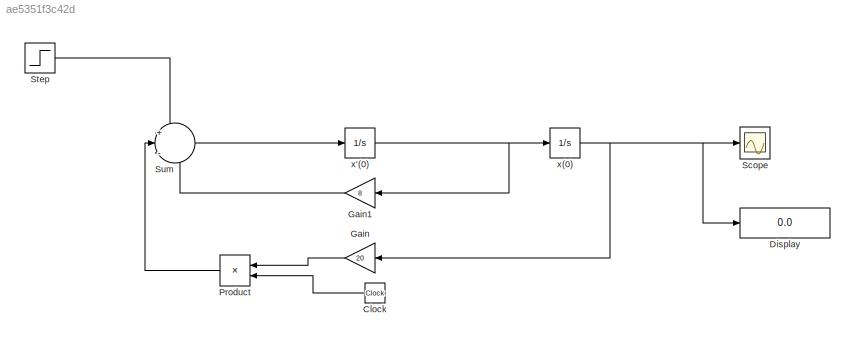
MODEL slx_ae5351f3c42d
KIND model
CONFIG AbsTol = auto
CONFIG EnableMultiTasking = off
CONFIG FixedStep = auto
CONFIG MaxStep = auto
CONFIG MinStep = auto
CONFIG RelTol = 1e-3
CONFIG SampleTimeConstraint = Unconstrained
CONFIG SolverName = VariableStepAuto
CONFIG StartTime = 0.0
CONFIG StopTime = 2
BLOCK [Clock] Clock
BLOCK [Display] Display
  Decimation = 1
BLOCK [Gain] Gain
  Gain = 20
BLOCK [Gain] Gain1
  Gain = 8
BLOCK [Product] Product
BLOCK [Scope] Scope
  Floating = off
  NumInputPorts = 1
  ScopeSpecificationString = Simulink.scopes.TimeScopeBlockCfg('CurrentConfiguration', extmgr.ConfigurationSet(extmgr.Configuration('Core','General UI',true),extmgr.Configuration('Core','Source UI',true),extmgr.Configuration('Sources','WiredSimulink',true),extmgr.Configuration('Visuals','Time Domain',true,'SerializedDisplays',{struct('MinYLimReal','-0.00794','MaxYLimReal','0.07145','YLabelReal','','MinYLimMag','0.00000','MaxY...<+1377ch>
BLOCK [Step] Step
  SampleTime = 0
  Time = 0
BLOCK [Sum] Sum
  Inputs = +|-|-
BLOCK [Integrator] x'(0)
BLOCK [Integrator] x(0)
LINE Clock:1 -> Product:2
LINE Gain1:1 -> Sum:3
LINE Gain:1 -> Product:1
LINE Product:1 -> Sum:2
LINE Step:1 -> Sum:1
LINE Sum:1 -> x'(0):1
NET x'(0):1 -> Gain1:1, x(0):1
NET x(0):1 -> Display:1, Gain:1, Scope:1
note: NET lines group one-source signal fan-out (src -> all destinations, sorted); 1:1 wires keep LINE
